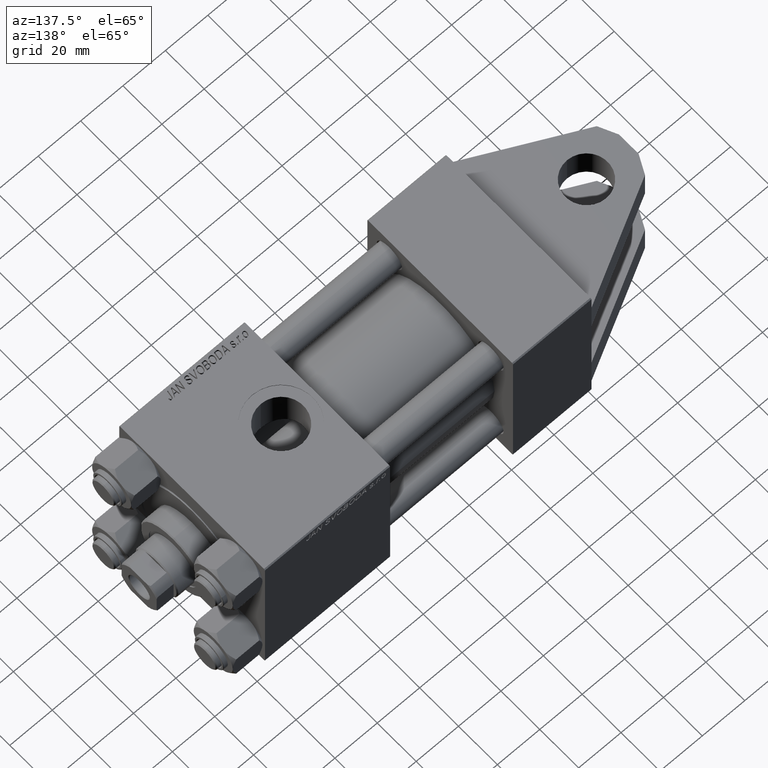
[diagram: clean part render]
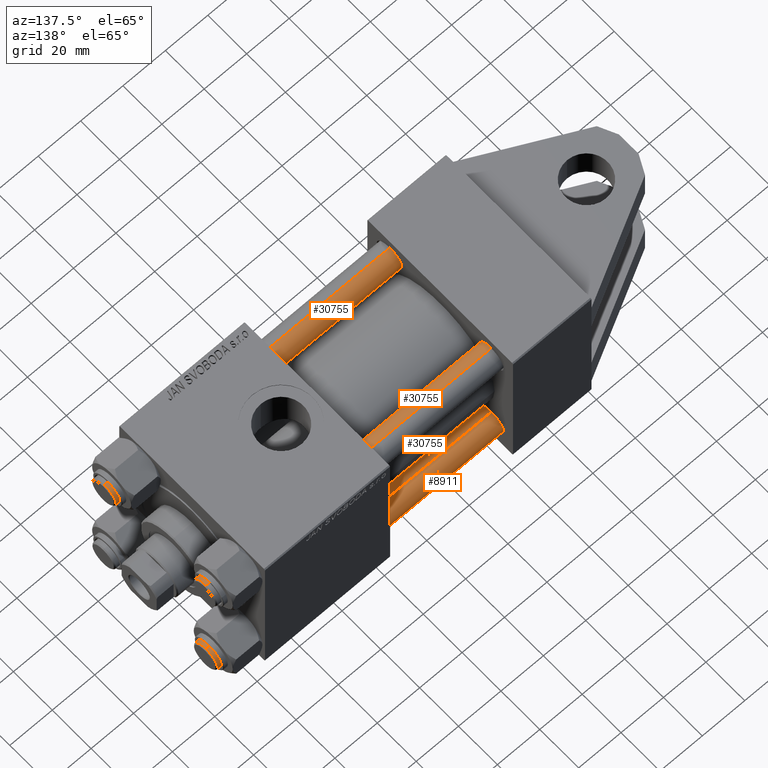
[diagram: same view with one multi-face feature highlighted, each face labeled with its STEP entity id]
A machine part, auxiliary view. The highlighted faces form ONE feature: a constant-radius fillet chain: 4 tangent blend faces with common blend radius 6 mm. The faces share edges in the B-rep.
Their STEP definitions:
[1] entity #30755 (Cylinder):
#3296 = ORIENTED_EDGE ( 'NONE', *, *, #14106, .T. ) ;
#5097 = DIRECTION ( 'NONE',  ( -0.000000000000000000, -0.000000000000000000, 1.000000000000000000 ) ) ;
#7376 = VECTOR ( 'NONE', #28145, 1000.000000000000000 ) ;
#7771 = ORIENTED_EDGE ( 'NONE', *, *, #33238, .F. ) ;
#9310 = LINE ( 'NONE', #24129, #7376 ) ;
#10654 = VERTEX_POINT ( 'NONE', #35008 ) ;
#10751 = EDGE_LOOP ( 'NONE', ( #7771, #3296, #16037, #15051 ) ) ;
#10938 = CARTESIAN_POINT ( 'NONE',  ( -6.000000000000000888, 0.000000000000000000, 0.5000000000000281997 ) ) ;
#11531 = VERTEX_POINT ( 'NONE', #27467 ) ;
#13836 = CARTESIAN_POINT ( 'NONE',  ( -6.000000000000000888, 0.000000000000000000, 148.0000000000000000 ) ) ;
#14106 = EDGE_CURVE ( 'NONE', #36451, #11531, #38142, .T. ) ;
#15051 = ORIENTED_EDGE ( 'NONE', *, *, #32104, .T. ) ;
#15567 = CYLINDRICAL_SURFACE ( 'NONE', #35458, 6.000000000000000888 ) ;
#16037 = ORIENTED_EDGE ( 'NONE', *, *, #48278, .T. ) ;
#16410 = CARTESIAN_POINT ( 'NONE',  ( 0.000000000000000000, 0.000000000000000000, 147.5000000000000000 ) ) ;
#16645 = DIRECTION ( 'NONE',  ( 1.000000000000000000, 0.000000000000000000, 0.000000000000000000 ) ) ;
#20899 = LINE ( 'NONE', #13836, #22969 ) ;
#21390 = DIRECTION ( 'NONE',  ( -0.000000000000000000, -0.000000000000000000, -1.000000000000000000 ) ) ;
#22969 = VECTOR ( 'NONE', #21390, 1000.000000000000000 ) ;
#23108 = CARTESIAN_POINT ( 'NONE',  ( 0.000000000000000000, 0.000000000000000000, 148.0000000000000000 ) ) ;
#24129 = CARTESIAN_POINT ( 'NONE',  ( 6.000000000000000888, 7.347880794884120722E-16, 148.0000000000000000 ) ) ;
#24939 = DIRECTION ( 'NONE',  ( 0.000000000000000000, 0.000000000000000000, -1.000000000000000000 ) ) ;
#26589 = AXIS2_PLACEMENT_3D ( 'NONE', #39511, #5097, #16645 ) ;
#27467 = CARTESIAN_POINT ( 'NONE',  ( -6.000000000000000888, 0.000000000000000000, 147.5000000000000000 ) ) ;
#28145 = DIRECTION ( 'NONE',  ( -0.000000000000000000, -0.000000000000000000, -1.000000000000000000 ) ) ;
#28720 = DIRECTION ( 'NONE',  ( 1.000000000000000000, 0.000000000000000000, 0.000000000000000000 ) ) ;
#30755 = ADVANCED_FACE ( 'NONE', ( #42222 ), #15567, .T. ) ;
#31364 = VERTEX_POINT ( 'NONE', #10938 ) ;
#32104 = EDGE_CURVE ( 'NONE', #31364, #10654, #40231, .T. ) ;
#33238 = EDGE_CURVE ( 'NONE', #36451, #10654, #9310, .T. ) ;
#34915 = DIRECTION ( 'NONE',  ( -1.000000000000000000, 0.000000000000000000, 0.000000000000000000 ) ) ;
#35008 = CARTESIAN_POINT ( 'NONE',  ( 6.000000000000000888, 7.347880794884120722E-16, 0.5000000000000281997 ) ) ;
#35458 = AXIS2_PLACEMENT_3D ( 'NONE', #23108, #38448, #34915 ) ;
#36451 = VERTEX_POINT ( 'NONE', #43837 ) ;
#38142 = CIRCLE ( 'NONE', #39754, 6.000000000000000888 ) ;
#38448 = DIRECTION ( 'NONE',  ( -0.000000000000000000, -0.000000000000000000, -1.000000000000000000 ) ) ;
#39511 = CARTESIAN_POINT ( 'NONE',  ( 0.000000000000000000, 0.000000000000000000, 0.5000000000000281997 ) ) ;
#39754 = AXIS2_PLACEMENT_3D ( 'NONE', #16410, #24939, #28720 ) ;
#40231 = CIRCLE ( 'NONE', #26589, 6.000000000000000888 ) ;
#42222 = FACE_OUTER_BOUND ( 'NONE', #10751, .T. ) ;
#43837 = CARTESIAN_POINT ( 'NONE',  ( 6.000000000000000888, 7.347880794884120722E-16, 147.5000000000000000 ) ) ;
#48278 = EDGE_CURVE ( 'NONE', #11531, #31364, #20899, .T. ) ;
[2] entity #30755 (Cylinder):
#3296 = ORIENTED_EDGE ( 'NONE', *, *, #14106, .T. ) ;
#5097 = DIRECTION ( 'NONE',  ( -0.000000000000000000, -0.000000000000000000, 1.000000000000000000 ) ) ;
#7376 = VECTOR ( 'NONE', #28145, 1000.000000000000000 ) ;
#7771 = ORIENTED_EDGE ( 'NONE', *, *, #33238, .F. ) ;
#9310 = LINE ( 'NONE', #24129, #7376 ) ;
#10654 = VERTEX_POINT ( 'NONE', #35008 ) ;
#10751 = EDGE_LOOP ( 'NONE', ( #7771, #3296, #16037, #15051 ) ) ;
#10938 = CARTESIAN_POINT ( 'NONE',  ( -6.000000000000000888, 0.000000000000000000, 0.5000000000000281997 ) ) ;
#11531 = VERTEX_POINT ( 'NONE', #27467 ) ;
#13836 = CARTESIAN_POINT ( 'NONE',  ( -6.000000000000000888, 0.000000000000000000, 148.0000000000000000 ) ) ;
#14106 = EDGE_CURVE ( 'NONE', #36451, #11531, #38142, .T. ) ;
#15051 = ORIENTED_EDGE ( 'NONE', *, *, #32104, .T. ) ;
#15567 = CYLINDRICAL_SURFACE ( 'NONE', #35458, 6.000000000000000888 ) ;
#16037 = ORIENTED_EDGE ( 'NONE', *, *, #48278, .T. ) ;
#16410 = CARTESIAN_POINT ( 'NONE',  ( 0.000000000000000000, 0.000000000000000000, 147.5000000000000000 ) ) ;
#16645 = DIRECTION ( 'NONE',  ( 1.000000000000000000, 0.000000000000000000, 0.000000000000000000 ) ) ;
#20899 = LINE ( 'NONE', #13836, #22969 ) ;
#21390 = DIRECTION ( 'NONE',  ( -0.000000000000000000, -0.000000000000000000, -1.000000000000000000 ) ) ;
#22969 = VECTOR ( 'NONE', #21390, 1000.000000000000000 ) ;
#23108 = CARTESIAN_POINT ( 'NONE',  ( 0.000000000000000000, 0.000000000000000000, 148.0000000000000000 ) ) ;
#24129 = CARTESIAN_POINT ( 'NONE',  ( 6.000000000000000888, 7.347880794884120722E-16, 148.0000000000000000 ) ) ;
#24939 = DIRECTION ( 'NONE',  ( 0.000000000000000000, 0.000000000000000000, -1.000000000000000000 ) ) ;
#26589 = AXIS2_PLACEMENT_3D ( 'NONE', #39511, #5097, #16645 ) ;
#27467 = CARTESIAN_POINT ( 'NONE',  ( -6.000000000000000888, 0.000000000000000000, 147.5000000000000000 ) ) ;
#28145 = DIRECTION ( 'NONE',  ( -0.000000000000000000, -0.000000000000000000, -1.000000000000000000 ) ) ;
#28720 = DIRECTION ( 'NONE',  ( 1.000000000000000000, 0.000000000000000000, 0.000000000000000000 ) ) ;
#30755 = ADVANCED_FACE ( 'NONE', ( #42222 ), #15567, .T. ) ;
#31364 = VERTEX_POINT ( 'NONE', #10938 ) ;
#32104 = EDGE_CURVE ( 'NONE', #31364, #10654, #40231, .T. ) ;
#33238 = EDGE_CURVE ( 'NONE', #36451, #10654, #9310, .T. ) ;
#34915 = DIRECTION ( 'NONE',  ( -1.000000000000000000, 0.000000000000000000, 0.000000000000000000 ) ) ;
#35008 = CARTESIAN_POINT ( 'NONE',  ( 6.000000000000000888, 7.347880794884120722E-16, 0.5000000000000281997 ) ) ;
#35458 = AXIS2_PLACEMENT_3D ( 'NONE', #23108, #38448, #34915 ) ;
#36451 = VERTEX_POINT ( 'NONE', #43837 ) ;
#38142 = CIRCLE ( 'NONE', #39754, 6.000000000000000888 ) ;
#38448 = DIRECTION ( 'NONE',  ( -0.000000000000000000, -0.000000000000000000, -1.000000000000000000 ) ) ;
#39511 = CARTESIAN_POINT ( 'NONE',  ( 0.000000000000000000, 0.000000000000000000, 0.5000000000000281997 ) ) ;
#39754 = AXIS2_PLACEMENT_3D ( 'NONE', #16410, #24939, #28720 ) ;
#40231 = CIRCLE ( 'NONE', #26589, 6.000000000000000888 ) ;
#42222 = FACE_OUTER_BOUND ( 'NONE', #10751, .T. ) ;
#43837 = CARTESIAN_POINT ( 'NONE',  ( 6.000000000000000888, 7.347880794884120722E-16, 147.5000000000000000 ) ) ;
#48278 = EDGE_CURVE ( 'NONE', #11531, #31364, #20899, .T. ) ;
[3] entity #8911 (Cylinder):
#415 = DIRECTION ( 'NONE',  ( -1.000000000000000000, 0.000000000000000000, 0.000000000000000000 ) ) ;
#1257 = DIRECTION ( 'NONE',  ( -0.000000000000000000, -0.000000000000000000, 1.000000000000000000 ) ) ;
#1423 = CARTESIAN_POINT ( 'NONE',  ( 0.000000000000000000, 0.000000000000000000, 147.5000000000000000 ) ) ;
#3680 = DIRECTION ( 'NONE',  ( -0.000000000000000000, -0.000000000000000000, -1.000000000000000000 ) ) ;
#4183 = CYLINDRICAL_SURFACE ( 'NONE', #18834, 6.000000000000000888 ) ;
#7023 = ORIENTED_EDGE ( 'NONE', *, *, #48278, .F. ) ;
#7376 = VECTOR ( 'NONE', #28145, 1000.000000000000000 ) ;
#8707 = DIRECTION ( 'NONE',  ( 1.000000000000000000, 0.000000000000000000, 0.000000000000000000 ) ) ;
#8911 = ADVANCED_FACE ( 'NONE', ( #22759 ), #4183, .T. ) ;
#9310 = LINE ( 'NONE', #24129, #7376 ) ;
#10654 = VERTEX_POINT ( 'NONE', #35008 ) ;
#10938 = CARTESIAN_POINT ( 'NONE',  ( -6.000000000000000888, 0.000000000000000000, 0.5000000000000281997 ) ) ;
#11531 = VERTEX_POINT ( 'NONE', #27467 ) ;
#11753 = CIRCLE ( 'NONE', #34188, 6.000000000000000888 ) ;
#13836 = CARTESIAN_POINT ( 'NONE',  ( -6.000000000000000888, 0.000000000000000000, 148.0000000000000000 ) ) ;
#18834 = AXIS2_PLACEMENT_3D ( 'NONE', #34818, #3680, #415 ) ;
#20899 = LINE ( 'NONE', #13836, #22969 ) ;
#21390 = DIRECTION ( 'NONE',  ( -0.000000000000000000, -0.000000000000000000, -1.000000000000000000 ) ) ;
#21931 = ORIENTED_EDGE ( 'NONE', *, *, #38653, .T. ) ;
#22759 = FACE_OUTER_BOUND ( 'NONE', #39140, .T. ) ;
#22969 = VECTOR ( 'NONE', #21390, 1000.000000000000000 ) ;
#23785 = DIRECTION ( 'NONE',  ( 0.000000000000000000, 0.000000000000000000, -1.000000000000000000 ) ) ;
#24129 = CARTESIAN_POINT ( 'NONE',  ( 6.000000000000000888, 7.347880794884120722E-16, 148.0000000000000000 ) ) ;
#27467 = CARTESIAN_POINT ( 'NONE',  ( -6.000000000000000888, 0.000000000000000000, 147.5000000000000000 ) ) ;
#27876 = CARTESIAN_POINT ( 'NONE',  ( 0.000000000000000000, 0.000000000000000000, 0.5000000000000281997 ) ) ;
#28145 = DIRECTION ( 'NONE',  ( -0.000000000000000000, -0.000000000000000000, -1.000000000000000000 ) ) ;
#31364 = VERTEX_POINT ( 'NONE', #10938 ) ;
#33238 = EDGE_CURVE ( 'NONE', #36451, #10654, #9310, .T. ) ;
#33346 = ORIENTED_EDGE ( 'NONE', *, *, #33238, .T. ) ;
#33979 = CIRCLE ( 'NONE', #44429, 6.000000000000000888 ) ;
#34188 = AXIS2_PLACEMENT_3D ( 'NONE', #27876, #1257, #43221 ) ;
#34818 = CARTESIAN_POINT ( 'NONE',  ( 0.000000000000000000, 0.000000000000000000, 148.0000000000000000 ) ) ;
#35008 = CARTESIAN_POINT ( 'NONE',  ( 6.000000000000000888, 7.347880794884120722E-16, 0.5000000000000281997 ) ) ;
#36451 = VERTEX_POINT ( 'NONE', #43837 ) ;
#38653 = EDGE_CURVE ( 'NONE', #11531, #36451, #33979, .T. ) ;
#39140 = EDGE_LOOP ( 'NONE', ( #21931, #33346, #41278, #7023 ) ) ;
#41278 = ORIENTED_EDGE ( 'NONE', *, *, #48589, .T. ) ;
#43221 = DIRECTION ( 'NONE',  ( 1.000000000000000000, 0.000000000000000000, 0.000000000000000000 ) ) ;
#43837 = CARTESIAN_POINT ( 'NONE',  ( 6.000000000000000888, 7.347880794884120722E-16, 147.5000000000000000 ) ) ;
#44429 = AXIS2_PLACEMENT_3D ( 'NONE', #1423, #23785, #8707 ) ;
#48278 = EDGE_CURVE ( 'NONE', #11531, #31364, #20899, .T. ) ;
#48589 = EDGE_CURVE ( 'NONE', #10654, #31364, #11753, .T. ) ;
[4] entity #30755 (Cylinder):
#3296 = ORIENTED_EDGE ( 'NONE', *, *, #14106, .T. ) ;
#5097 = DIRECTION ( 'NONE',  ( -0.000000000000000000, -0.000000000000000000, 1.000000000000000000 ) ) ;
#7376 = VECTOR ( 'NONE', #28145, 1000.000000000000000 ) ;
#7771 = ORIENTED_EDGE ( 'NONE', *, *, #33238, .F. ) ;
#9310 = LINE ( 'NONE', #24129, #7376 ) ;
#10654 = VERTEX_POINT ( 'NONE', #35008 ) ;
#10751 = EDGE_LOOP ( 'NONE', ( #7771, #3296, #16037, #15051 ) ) ;
#10938 = CARTESIAN_POINT ( 'NONE',  ( -6.000000000000000888, 0.000000000000000000, 0.5000000000000281997 ) ) ;
#11531 = VERTEX_POINT ( 'NONE', #27467 ) ;
#13836 = CARTESIAN_POINT ( 'NONE',  ( -6.000000000000000888, 0.000000000000000000, 148.0000000000000000 ) ) ;
#14106 = EDGE_CURVE ( 'NONE', #36451, #11531, #38142, .T. ) ;
#15051 = ORIENTED_EDGE ( 'NONE', *, *, #32104, .T. ) ;
#15567 = CYLINDRICAL_SURFACE ( 'NONE', #35458, 6.000000000000000888 ) ;
#16037 = ORIENTED_EDGE ( 'NONE', *, *, #48278, .T. ) ;
#16410 = CARTESIAN_POINT ( 'NONE',  ( 0.000000000000000000, 0.000000000000000000, 147.5000000000000000 ) ) ;
#16645 = DIRECTION ( 'NONE',  ( 1.000000000000000000, 0.000000000000000000, 0.000000000000000000 ) ) ;
#20899 = LINE ( 'NONE', #13836, #22969 ) ;
#21390 = DIRECTION ( 'NONE',  ( -0.000000000000000000, -0.000000000000000000, -1.000000000000000000 ) ) ;
#22969 = VECTOR ( 'NONE', #21390, 1000.000000000000000 ) ;
#23108 = CARTESIAN_POINT ( 'NONE',  ( 0.000000000000000000, 0.000000000000000000, 148.0000000000000000 ) ) ;
#24129 = CARTESIAN_POINT ( 'NONE',  ( 6.000000000000000888, 7.347880794884120722E-16, 148.0000000000000000 ) ) ;
#24939 = DIRECTION ( 'NONE',  ( 0.000000000000000000, 0.000000000000000000, -1.000000000000000000 ) ) ;
#26589 = AXIS2_PLACEMENT_3D ( 'NONE', #39511, #5097, #16645 ) ;
#27467 = CARTESIAN_POINT ( 'NONE',  ( -6.000000000000000888, 0.000000000000000000, 147.5000000000000000 ) ) ;
#28145 = DIRECTION ( 'NONE',  ( -0.000000000000000000, -0.000000000000000000, -1.000000000000000000 ) ) ;
#28720 = DIRECTION ( 'NONE',  ( 1.000000000000000000, 0.000000000000000000, 0.000000000000000000 ) ) ;
#30755 = ADVANCED_FACE ( 'NONE', ( #42222 ), #15567, .T. ) ;
#31364 = VERTEX_POINT ( 'NONE', #10938 ) ;
#32104 = EDGE_CURVE ( 'NONE', #31364, #10654, #40231, .T. ) ;
#33238 = EDGE_CURVE ( 'NONE', #36451, #10654, #9310, .T. ) ;
#34915 = DIRECTION ( 'NONE',  ( -1.000000000000000000, 0.000000000000000000, 0.000000000000000000 ) ) ;
#35008 = CARTESIAN_POINT ( 'NONE',  ( 6.000000000000000888, 7.347880794884120722E-16, 0.5000000000000281997 ) ) ;
#35458 = AXIS2_PLACEMENT_3D ( 'NONE', #23108, #38448, #34915 ) ;
#36451 = VERTEX_POINT ( 'NONE', #43837 ) ;
#38142 = CIRCLE ( 'NONE', #39754, 6.000000000000000888 ) ;
#38448 = DIRECTION ( 'NONE',  ( -0.000000000000000000, -0.000000000000000000, -1.000000000000000000 ) ) ;
#39511 = CARTESIAN_POINT ( 'NONE',  ( 0.000000000000000000, 0.000000000000000000, 0.5000000000000281997 ) ) ;
#39754 = AXIS2_PLACEMENT_3D ( 'NONE', #16410, #24939, #28720 ) ;
#40231 = CIRCLE ( 'NONE', #26589, 6.000000000000000888 ) ;
#42222 = FACE_OUTER_BOUND ( 'NONE', #10751, .T. ) ;
#43837 = CARTESIAN_POINT ( 'NONE',  ( 6.000000000000000888, 7.347880794884120722E-16, 147.5000000000000000 ) ) ;
#48278 = EDGE_CURVE ( 'NONE', #11531, #31364, #20899, .T. ) ;